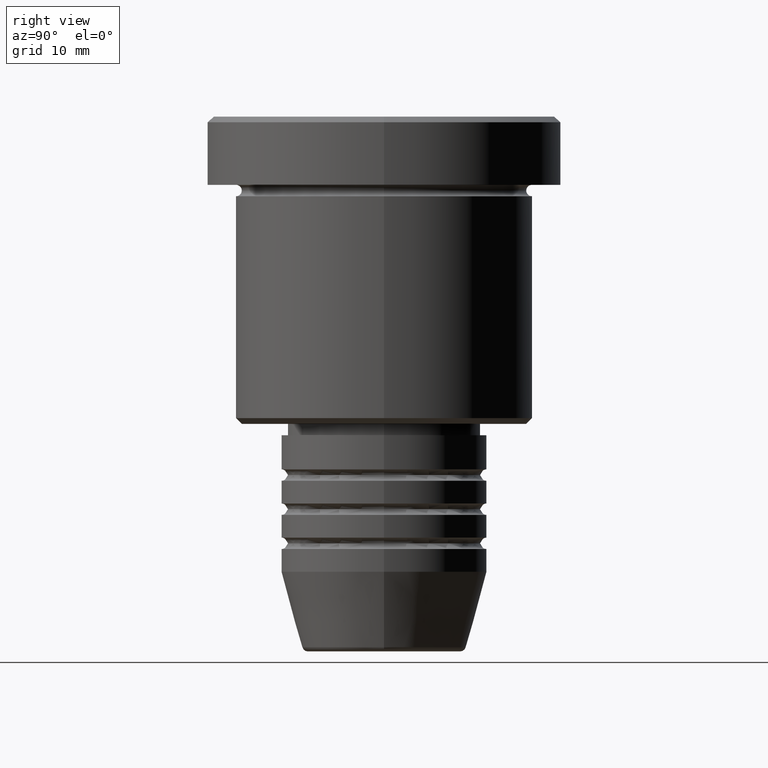
[diagram: clean part render]
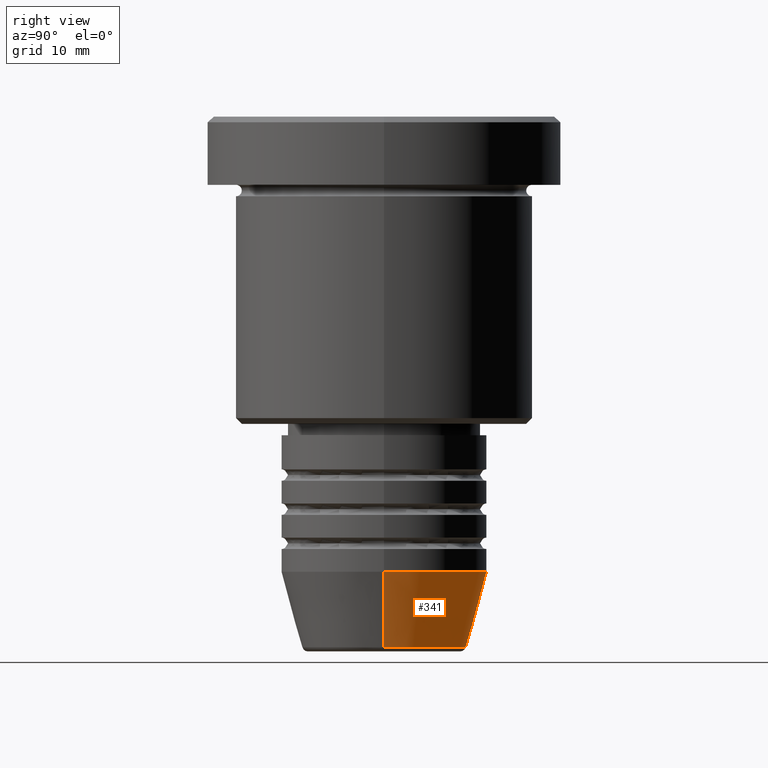
[diagram: same view with one face highlighted and labeled with its STEP entity id]
A machine part, right view. The second image highlights one B-rep face of the part: STEP entity #341.
In plain terms, the highlighted conical surface has half-angle 15 deg.
Its self-contained STEP definition (entity closure, byte-faithful):
#14 = FACE_OUTER_BOUND ( 'NONE', #313, .T. ) ;
#87 = CARTESIAN_POINT ( 'NONE',  ( 9.000000000000000000, 0.000000000000000000, -40.00000000000000000 ) ) ;
#122 = EDGE_CURVE ( 'NONE', #827, #596, #910, .T. ) ;
#128 = EDGE_CURVE ( 'NONE', #721, #373, #248, .T. ) ;
#140 = VECTOR ( 'NONE', #701, 1000.000000000000000 ) ;
#176 = ORIENTED_EDGE ( 'NONE', *, *, #128, .T. ) ;
#193 = DIRECTION ( 'NONE',  ( 1.000000000000000000, 0.000000000000000000, 0.000000000000000000 ) ) ;
#244 = DIRECTION ( 'NONE',  ( -0.2588190451025213501, 3.169619151431772337E-17, 0.9659258262890680902 ) ) ;
#248 = LINE ( 'NONE', #1167, #1176 ) ;
#282 = CONICAL_SURFACE ( 'NONE', #1084, 9.000000000000000000, 0.2617993877991500740 ) ;
#313 = EDGE_LOOP ( 'NONE', ( #775, #176, #985, #420 ) ) ;
#341 = ADVANCED_FACE ( 'NONE', ( #14 ), #282, .T. ) ;
#373 = VERTEX_POINT ( 'NONE', #1135 ) ;
#420 = ORIENTED_EDGE ( 'NONE', *, *, #122, .F. ) ;
#504 = CIRCLE ( 'NONE', #537, 7.223655072137190380 ) ;
#520 = AXIS2_PLACEMENT_3D ( 'NONE', #722, #1118, #940 ) ;
#533 = DIRECTION ( 'NONE',  ( -0.000000000000000000, -0.000000000000000000, 1.000000000000000000 ) ) ;
#537 = AXIS2_PLACEMENT_3D ( 'NONE', #1157, #533, #628 ) ;
#596 = VERTEX_POINT ( 'NONE', #645 ) ;
#599 = CARTESIAN_POINT ( 'NONE',  ( -7.223655072137191269, 9.934123627281767082E-16, -46.62940952255126348 ) ) ;
#628 = DIRECTION ( 'NONE',  ( 1.000000000000000000, 0.000000000000000000, 0.000000000000000000 ) ) ;
#645 = CARTESIAN_POINT ( 'NONE',  ( 9.000000000000000000, 0.000000000000000000, -40.00000000000000000 ) ) ;
#666 = CIRCLE ( 'NONE', #520, 9.000000000000000000 ) ;
#701 = DIRECTION ( 'NONE',  ( 0.2588190451025213501, 0.000000000000000000, 0.9659258262890680902 ) ) ;
#721 = VERTEX_POINT ( 'NONE', #599 ) ;
#722 = CARTESIAN_POINT ( 'NONE',  ( 0.000000000000000000, 0.000000000000000000, -40.00000000000000000 ) ) ;
#742 = DIRECTION ( 'NONE',  ( -0.000000000000000000, -0.000000000000000000, 1.000000000000000000 ) ) ;
#775 = ORIENTED_EDGE ( 'NONE', *, *, #886, .T. ) ;
#821 = EDGE_CURVE ( 'NONE', #596, #373, #666, .T. ) ;
#827 = VERTEX_POINT ( 'NONE', #921 ) ;
#886 = EDGE_CURVE ( 'NONE', #827, #721, #504, .T. ) ;
#910 = LINE ( 'NONE', #87, #140 ) ;
#921 = CARTESIAN_POINT ( 'NONE',  ( 7.223655072137190380, 0.000000000000000000, -46.62940952255126348 ) ) ;
#940 = DIRECTION ( 'NONE',  ( 1.000000000000000000, 0.000000000000000000, 0.000000000000000000 ) ) ;
#985 = ORIENTED_EDGE ( 'NONE', *, *, #821, .F. ) ;
#1017 = CARTESIAN_POINT ( 'NONE',  ( 0.000000000000000000, 0.000000000000000000, -40.00000000000000000 ) ) ;
#1084 = AXIS2_PLACEMENT_3D ( 'NONE', #1017, #742, #193 ) ;
#1118 = DIRECTION ( 'NONE',  ( -0.000000000000000000, -0.000000000000000000, 1.000000000000000000 ) ) ;
#1135 = CARTESIAN_POINT ( 'NONE',  ( -9.000000000000000000, 1.102182119232617714E-15, -40.00000000000000000 ) ) ;
#1157 = CARTESIAN_POINT ( 'NONE',  ( 0.000000000000000000, 0.000000000000000000, -46.62940952255126348 ) ) ;
#1167 = CARTESIAN_POINT ( 'NONE',  ( -9.000000000000000000, 1.102182119232617714E-15, -40.00000000000000000 ) ) ;
#1176 = VECTOR ( 'NONE', #244, 1000.000000000000000 ) ;